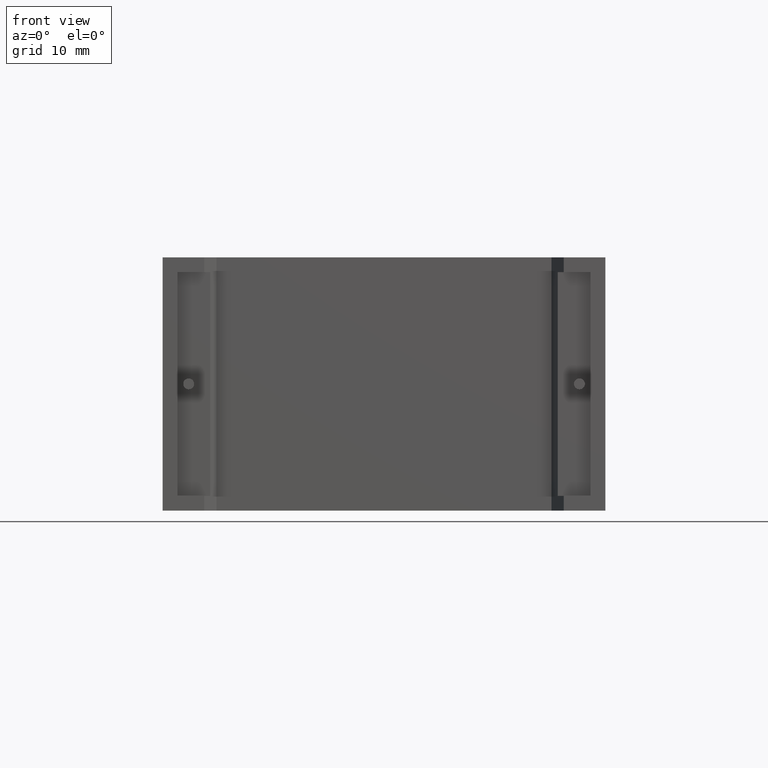
[diagram: clean part render]
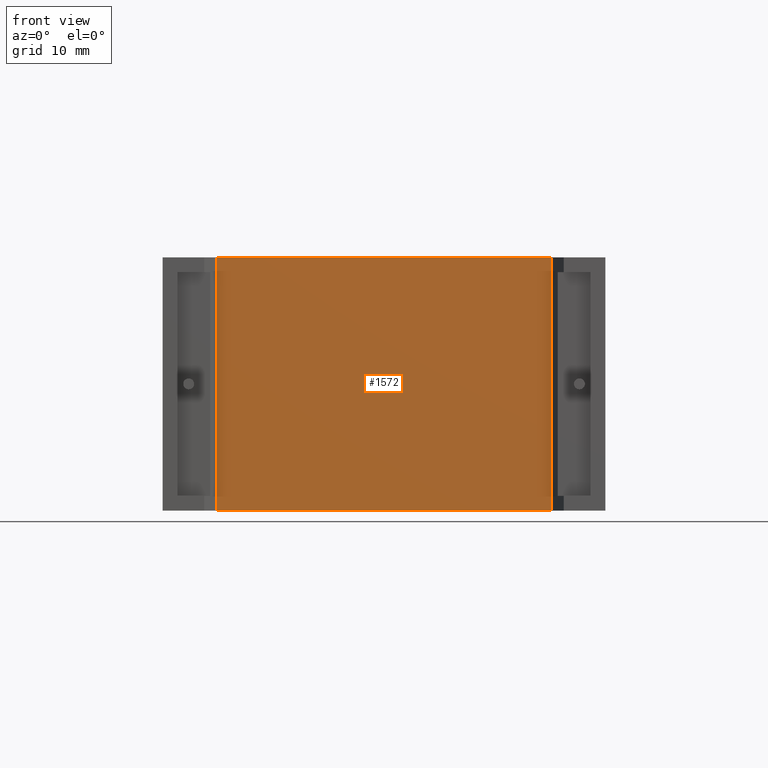
[diagram: same view with one face highlighted and labeled with its STEP entity id]
A machine part, front view. The second image highlights one B-rep face of the part: STEP entity #1572.
In plain terms, the highlighted planar face has unit normal (-0, 1, 0).
Its self-contained STEP definition (entity closure, byte-faithful):
#183 = CARTESIAN_POINT ( 'NONE',  ( 21.25000000000000000, 1.527464000000001043, 0.000000000000000000 ) ) ;
#225 = AXIS2_PLACEMENT_3D ( 'NONE', #539, #2902, #1011 ) ;
#271 = VECTOR ( 'NONE', #2493, 1000.000000000000000 ) ;
#539 = CARTESIAN_POINT ( 'NONE',  ( 21.25000000000000000, 1.527464000000001043, 0.000000000000000000 ) ) ;
#595 = LINE ( 'NONE', #183, #271 ) ;
#684 = ORIENTED_EDGE ( 'NONE', *, *, #2669, .T. ) ;
#1011 = DIRECTION ( 'NONE',  ( -1.000000000000000000, -1.214431384679566713E-16, 0.000000000000000000 ) ) ;
#1091 = ORIENTED_EDGE ( 'NONE', *, *, #1661, .F. ) ;
#1099 = VERTEX_POINT ( 'NONE', #2959 ) ;
#1239 = LINE ( 'NONE', #1928, #1900 ) ;
#1374 = ORIENTED_EDGE ( 'NONE', *, *, #1874, .T. ) ;
#1412 = DIRECTION ( 'NONE',  ( -1.000000000000000000, -1.214431384679566713E-16, 0.000000000000000000 ) ) ;
#1428 = LINE ( 'NONE', #3056, #2786 ) ;
#1484 = FACE_OUTER_BOUND ( 'NONE', #1929, .T. ) ;
#1493 = VERTEX_POINT ( 'NONE', #2778 ) ;
#1572 = ADVANCED_FACE ( 'NONE', ( #1484 ), #1700, .F. ) ;
#1580 = CARTESIAN_POINT ( 'NONE',  ( 5.180225000000002744, 1.527463999999999045, 24.30000000000000071 ) ) ;
#1607 = VERTEX_POINT ( 'NONE', #1580 ) ;
#1661 = EDGE_CURVE ( 'NONE', #1493, #1819, #595, .T. ) ;
#1700 = PLANE ( 'NONE',  #225 ) ;
#1713 = EDGE_CURVE ( 'NONE', #1819, #1607, #1428, .T. ) ;
#1717 = DIRECTION ( 'NONE',  ( -0.000000000000000000, -0.000000000000000000, 1.000000000000000000 ) ) ;
#1819 = VERTEX_POINT ( 'NONE', #2542 ) ;
#1836 = ORIENTED_EDGE ( 'NONE', *, *, #1713, .F. ) ;
#1865 = CARTESIAN_POINT ( 'NONE',  ( 21.25000000000000000, 1.527464000000001043, 24.30000000000000071 ) ) ;
#1874 = EDGE_CURVE ( 'NONE', #1099, #1607, #3023, .T. ) ;
#1900 = VECTOR ( 'NONE', #1717, 1000.000000000000000 ) ;
#1928 = CARTESIAN_POINT ( 'NONE',  ( 37.31977499999999992, 1.527463999999999045, 0.000000000000000000 ) ) ;
#1929 = EDGE_LOOP ( 'NONE', ( #1374, #1836, #1091, #684 ) ) ;
#2487 = VECTOR ( 'NONE', #1412, 1000.000000000000000 ) ;
#2493 = DIRECTION ( 'NONE',  ( -1.000000000000000000, -1.214431384679566713E-16, 0.000000000000000000 ) ) ;
#2542 = CARTESIAN_POINT ( 'NONE',  ( 5.180225000000002744, 1.527463999999999045, 0.000000000000000000 ) ) ;
#2669 = EDGE_CURVE ( 'NONE', #1493, #1099, #1239, .T. ) ;
#2778 = CARTESIAN_POINT ( 'NONE',  ( 37.31977499999999992, 1.527463999999999045, 0.000000000000000000 ) ) ;
#2786 = VECTOR ( 'NONE', #2842, 1000.000000000000000 ) ;
#2842 = DIRECTION ( 'NONE',  ( -0.000000000000000000, -0.000000000000000000, 1.000000000000000000 ) ) ;
#2902 = DIRECTION ( 'NONE',  ( -1.214431384679566713E-16, 1.000000000000000000, 0.000000000000000000 ) ) ;
#2959 = CARTESIAN_POINT ( 'NONE',  ( 37.31977499999999992, 1.527463999999999045, 24.30000000000000071 ) ) ;
#3023 = LINE ( 'NONE', #1865, #2487 ) ;
#3056 = CARTESIAN_POINT ( 'NONE',  ( 5.180225000000002744, 1.527463999999999045, 0.000000000000000000 ) ) ;